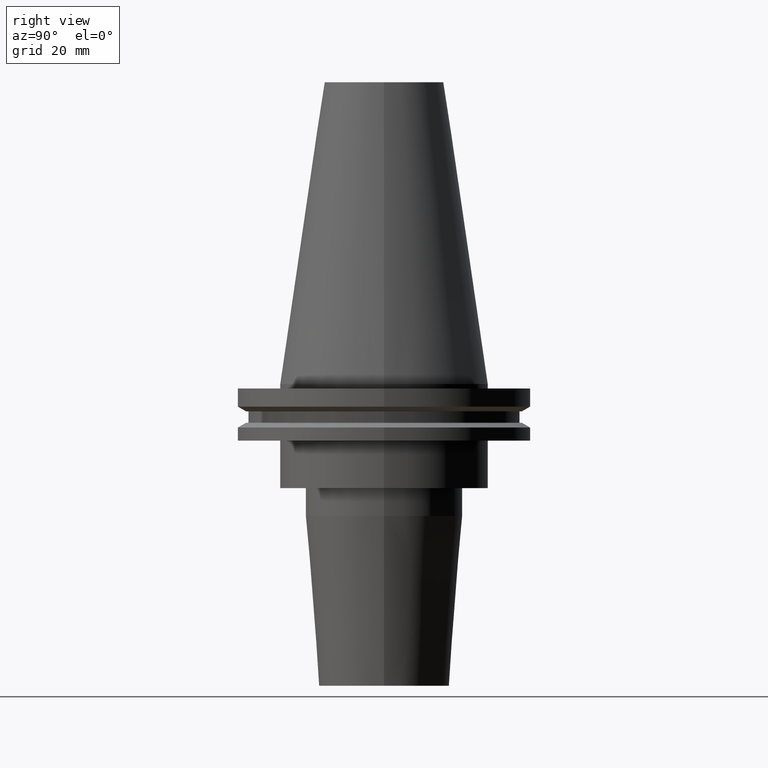
[diagram: clean part render]
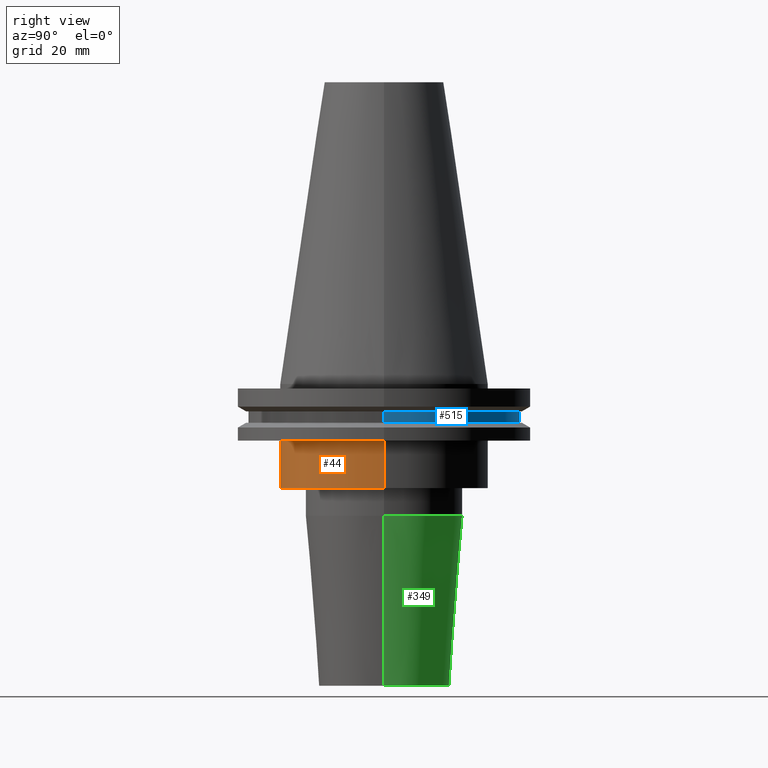
[diagram: same view with three faces highlighted in distinct colors, each labeled with its STEP entity id]
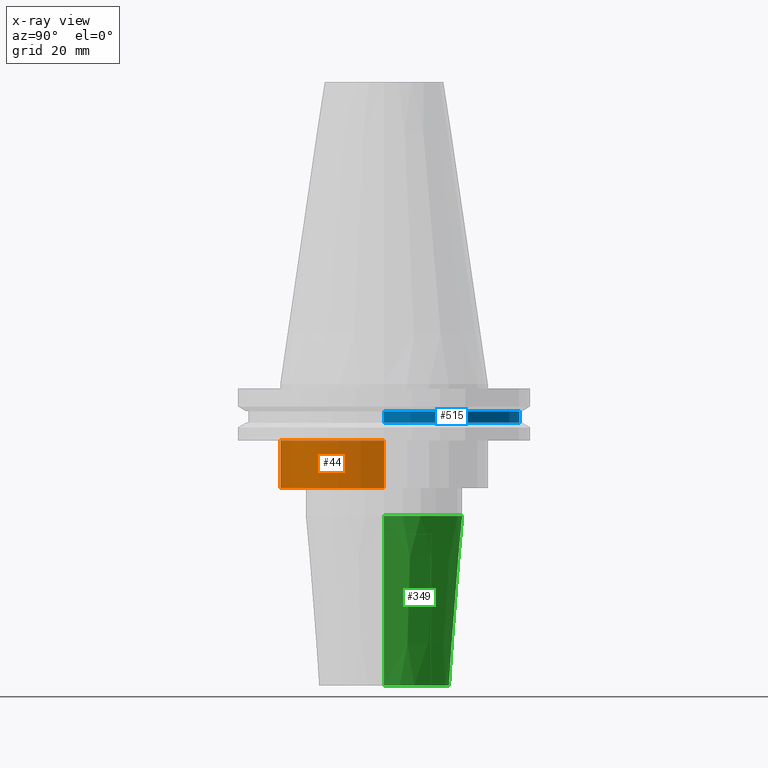
[diagram: x-ray of the same camera — body ghosted, the three highlighted faces saturated]
A machine part, right view with three faces highlighted in distinct colors.
The next image is the same camera in x-ray (body ghosted, the three faces saturated) — at least one of them is partly hidden behind the body in this view.
Their STEP definitions:

[orange] entity #44 — the highlighted cylindrical surface (partial cylindrical patch) has radius 34.925 mm, axis along (-0, -0, 1).
#4 = DIRECTION ( 'NONE',  ( 1.000000000000000000, 0.000000000000000000, 0.000000000000000000 ) ) ;
#38 = DIRECTION ( 'NONE',  ( 1.000000000000000000, 0.000000000000000000, 0.000000000000000000 ) ) ;
#44 = ADVANCED_FACE ( 'NONE', ( #411 ), #339, .T. ) ;
#60 = ORIENTED_EDGE ( 'NONE', *, *, #301, .T. ) ;
#63 = AXIS2_PLACEMENT_3D ( 'NONE', #656, #429, #38 ) ;
#93 = CARTESIAN_POINT ( 'NONE',  ( 0.000000000000000000, 0.000000000000000000, -35.04999999999999716 ) ) ;
#95 = CARTESIAN_POINT ( 'NONE',  ( -34.92499999999999716, 4.277078946022130887E-15, -35.04999999999999716 ) ) ;
#100 = EDGE_LOOP ( 'NONE', ( #353, #826, #60, #723 ) ) ;
#118 = CARTESIAN_POINT ( 'NONE',  ( 34.92499999999999716, 0.000000000000000000, 101.5999999999999943 ) ) ;
#125 = CIRCLE ( 'NONE', #247, 34.92499999999999716 ) ;
#140 = CARTESIAN_POINT ( 'NONE',  ( 0.000000000000000000, 0.000000000000000000, 101.5999999999999943 ) ) ;
#168 = VERTEX_POINT ( 'NONE', #95 ) ;
#185 = DIRECTION ( 'NONE',  ( -0.000000000000000000, -0.000000000000000000, 1.000000000000000000 ) ) ;
#202 = DIRECTION ( 'NONE',  ( -0.000000000000000000, -0.000000000000000000, 1.000000000000000000 ) ) ;
#247 = AXIS2_PLACEMENT_3D ( 'NONE', #93, #763, #4 ) ;
#288 = CARTESIAN_POINT ( 'NONE',  ( -34.92499999999999716, 4.277078946022130887E-15, -19.04999999999999716 ) ) ;
#301 = EDGE_CURVE ( 'NONE', #465, #319, #516, .T. ) ;
#319 = VERTEX_POINT ( 'NONE', #352 ) ;
#337 = EDGE_CURVE ( 'NONE', #168, #357, #501, .T. ) ;
#339 = CYLINDRICAL_SURFACE ( 'NONE', #709, 34.92499999999999716 ) ;
#352 = CARTESIAN_POINT ( 'NONE',  ( 34.92499999999999716, 0.000000000000000000, -19.04999999999999716 ) ) ;
#353 = ORIENTED_EDGE ( 'NONE', *, *, #337, .F. ) ;
#357 = VERTEX_POINT ( 'NONE', #288 ) ;
#372 = EDGE_CURVE ( 'NONE', #168, #465, #125, .T. ) ;
#411 = FACE_OUTER_BOUND ( 'NONE', #100, .T. ) ;
#429 = DIRECTION ( 'NONE',  ( -0.000000000000000000, -0.000000000000000000, 1.000000000000000000 ) ) ;
#465 = VERTEX_POINT ( 'NONE', #785 ) ;
#501 = LINE ( 'NONE', #630, #511 ) ;
#511 = VECTOR ( 'NONE', #705, 1000.000000000000000 ) ;
#516 = LINE ( 'NONE', #118, #552 ) ;
#552 = VECTOR ( 'NONE', #185, 1000.000000000000000 ) ;
#630 = CARTESIAN_POINT ( 'NONE',  ( -34.92499999999999716, 4.277078946022130887E-15, 101.5999999999999943 ) ) ;
#656 = CARTESIAN_POINT ( 'NONE',  ( 0.000000000000000000, 0.000000000000000000, -19.04999999999999716 ) ) ;
#682 = DIRECTION ( 'NONE',  ( 1.000000000000000000, 0.000000000000000000, 0.000000000000000000 ) ) ;
#705 = DIRECTION ( 'NONE',  ( -0.000000000000000000, -0.000000000000000000, 1.000000000000000000 ) ) ;
#709 = AXIS2_PLACEMENT_3D ( 'NONE', #140, #202, #682 ) ;
#723 = ORIENTED_EDGE ( 'NONE', *, *, #766, .F. ) ;
#758 = CIRCLE ( 'NONE', #63, 34.92499999999999716 ) ;
#763 = DIRECTION ( 'NONE',  ( -0.000000000000000000, -0.000000000000000000, 1.000000000000000000 ) ) ;
#766 = EDGE_CURVE ( 'NONE', #357, #319, #758, .T. ) ;
#785 = CARTESIAN_POINT ( 'NONE',  ( 34.92499999999999716, 0.000000000000000000, -35.04999999999999716 ) ) ;
#826 = ORIENTED_EDGE ( 'NONE', *, *, #372, .T. ) ;

[blue] entity #515 — the highlighted cylindrical surface (partial cylindrical patch) has radius 45.645 mm, axis along (-0, -0, 1).
#1 = DIRECTION ( 'NONE',  ( 1.000000000000000000, 0.000000000000000000, 0.000000000000000000 ) ) ;
#8 = LINE ( 'NONE', #275, #787 ) ;
#34 = LINE ( 'NONE', #643, #540 ) ;
#57 = EDGE_CURVE ( 'NONE', #560, #393, #311, .T. ) ;
#108 = ORIENTED_EDGE ( 'NONE', *, *, #57, .F. ) ;
#111 = ORIENTED_EDGE ( 'NONE', *, *, #351, .T. ) ;
#116 = CARTESIAN_POINT ( 'NONE',  ( -45.64500000000000313, 5.589900314708094957E-15, -9.204999999999991189 ) ) ;
#155 = DIRECTION ( 'NONE',  ( -0.000000000000000000, -0.000000000000000000, 1.000000000000000000 ) ) ;
#184 = CARTESIAN_POINT ( 'NONE',  ( 0.000000000000000000, 0.000000000000000000, 101.5999999999999943 ) ) ;
#275 = CARTESIAN_POINT ( 'NONE',  ( -45.64500000000000313, 5.589900314708094957E-15, 101.5999999999999943 ) ) ;
#285 = CARTESIAN_POINT ( 'NONE',  ( 45.64500000000000313, 0.000000000000000000, -9.204999999999991189 ) ) ;
#286 = EDGE_CURVE ( 'NONE', #734, #560, #34, .T. ) ;
#311 = CIRCLE ( 'NONE', #638, 45.64500000000000313 ) ;
#351 = EDGE_CURVE ( 'NONE', #734, #845, #838, .T. ) ;
#387 = DIRECTION ( 'NONE',  ( 1.000000000000000000, 0.000000000000000000, 0.000000000000000000 ) ) ;
#393 = VERTEX_POINT ( 'NONE', #116 ) ;
#440 = AXIS2_PLACEMENT_3D ( 'NONE', #184, #454, #387 ) ;
#454 = DIRECTION ( 'NONE',  ( -0.000000000000000000, -0.000000000000000000, 1.000000000000000000 ) ) ;
#472 = CARTESIAN_POINT ( 'NONE',  ( 0.000000000000000000, 0.000000000000000000, -9.204999999999991189 ) ) ;
#495 = AXIS2_PLACEMENT_3D ( 'NONE', #698, #573, #830 ) ;
#509 = CARTESIAN_POINT ( 'NONE',  ( 45.64500000000000313, 0.000000000000000000, -13.05499999999999794 ) ) ;
#515 = ADVANCED_FACE ( 'NONE', ( #594 ), #518, .T. ) ;
#518 = CYLINDRICAL_SURFACE ( 'NONE', #440, 45.64500000000000313 ) ;
#540 = VECTOR ( 'NONE', #792, 1000.000000000000000 ) ;
#560 = VERTEX_POINT ( 'NONE', #285 ) ;
#564 = ORIENTED_EDGE ( 'NONE', *, *, #286, .F. ) ;
#568 = CARTESIAN_POINT ( 'NONE',  ( -45.64500000000000313, 5.589900314708094957E-15, -13.05499999999999794 ) ) ;
#573 = DIRECTION ( 'NONE',  ( -0.000000000000000000, -0.000000000000000000, 1.000000000000000000 ) ) ;
#577 = EDGE_CURVE ( 'NONE', #845, #393, #8, .T. ) ;
#594 = FACE_OUTER_BOUND ( 'NONE', #797, .T. ) ;
#638 = AXIS2_PLACEMENT_3D ( 'NONE', #472, #744, #1 ) ;
#643 = CARTESIAN_POINT ( 'NONE',  ( 45.64500000000000313, 0.000000000000000000, 101.5999999999999943 ) ) ;
#698 = CARTESIAN_POINT ( 'NONE',  ( 0.000000000000000000, 0.000000000000000000, -13.05499999999999794 ) ) ;
#734 = VERTEX_POINT ( 'NONE', #509 ) ;
#744 = DIRECTION ( 'NONE',  ( -0.000000000000000000, -0.000000000000000000, 1.000000000000000000 ) ) ;
#787 = VECTOR ( 'NONE', #155, 1000.000000000000000 ) ;
#792 = DIRECTION ( 'NONE',  ( -0.000000000000000000, -0.000000000000000000, 1.000000000000000000 ) ) ;
#797 = EDGE_LOOP ( 'NONE', ( #111, #850, #108, #564 ) ) ;
#830 = DIRECTION ( 'NONE',  ( 1.000000000000000000, 0.000000000000000000, 0.000000000000000000 ) ) ;
#838 = CIRCLE ( 'NONE', #495, 45.64500000000000313 ) ;
#845 = VERTEX_POINT ( 'NONE', #568 ) ;
#850 = ORIENTED_EDGE ( 'NONE', *, *, #577, .T. ) ;

[green] entity #349 — the highlighted conical surface has half-angle 4.5 deg.
#6 = EDGE_CURVE ( 'NONE', #400, #793, #80, .T. ) ;
#17 = CONICAL_SURFACE ( 'NONE', #470, 22.00000000000000000, 0.07853981633973751431 ) ;
#80 = LINE ( 'NONE', #798, #735 ) ;
#101 = DIRECTION ( 'NONE',  ( 1.000000000000000000, 0.000000000000000000, 0.000000000000000000 ) ) ;
#105 = CARTESIAN_POINT ( 'NONE',  ( 0.000000000000000000, 0.000000000000000000, -101.5999999999999943 ) ) ;
#132 = VERTEX_POINT ( 'NONE', #748 ) ;
#148 = CARTESIAN_POINT ( 'NONE',  ( 0.000000000000000000, 0.000000000000000000, -44.42207868720844743 ) ) ;
#150 = DIRECTION ( 'NONE',  ( -0.000000000000000000, -0.000000000000000000, 1.000000000000000000 ) ) ;
#228 = CIRCLE ( 'NONE', #722, 22.00000000000000000 ) ;
#276 = ORIENTED_EDGE ( 'NONE', *, *, #6, .T. ) ;
#279 = DIRECTION ( 'NONE',  ( -0.07845909572783764385, 9.608468044709212160E-18, 0.9969173337331286300 ) ) ;
#281 = CIRCLE ( 'NONE', #687, 26.50000000000000000 ) ;
#304 = DIRECTION ( 'NONE',  ( -0.000000000000000000, -0.000000000000000000, 1.000000000000000000 ) ) ;
#325 = VERTEX_POINT ( 'NONE', #811 ) ;
#349 = ADVANCED_FACE ( 'NONE', ( #767 ), #17, .T. ) ;
#350 = LINE ( 'NONE', #749, #636 ) ;
#370 = ORIENTED_EDGE ( 'NONE', *, *, #691, .F. ) ;
#377 = DIRECTION ( 'NONE',  ( -0.000000000000000000, -0.000000000000000000, 1.000000000000000000 ) ) ;
#381 = CARTESIAN_POINT ( 'NONE',  ( 0.000000000000000000, 0.000000000000000000, -101.5999999999999943 ) ) ;
#400 = VERTEX_POINT ( 'NONE', #720 ) ;
#414 = DIRECTION ( 'NONE',  ( 0.07845909572783764385, 0.000000000000000000, 0.9969173337331286300 ) ) ;
#470 = AXIS2_PLACEMENT_3D ( 'NONE', #105, #304, #624 ) ;
#475 = EDGE_LOOP ( 'NONE', ( #547, #276, #537, #370 ) ) ;
#537 = ORIENTED_EDGE ( 'NONE', *, *, #628, .F. ) ;
#547 = ORIENTED_EDGE ( 'NONE', *, *, #824, .T. ) ;
#624 = DIRECTION ( 'NONE',  ( 1.000000000000000000, 0.000000000000000000, 0.000000000000000000 ) ) ;
#628 = EDGE_CURVE ( 'NONE', #132, #793, #281, .T. ) ;
#636 = VECTOR ( 'NONE', #414, 999.9999999999998863 ) ;
#685 = DIRECTION ( 'NONE',  ( 1.000000000000000000, 0.000000000000000000, 0.000000000000000000 ) ) ;
#687 = AXIS2_PLACEMENT_3D ( 'NONE', #148, #150, #685 ) ;
#691 = EDGE_CURVE ( 'NONE', #325, #132, #350, .T. ) ;
#720 = CARTESIAN_POINT ( 'NONE',  ( -22.00000000000000000, 2.969768487932331287E-15, -101.5999999999999943 ) ) ;
#722 = AXIS2_PLACEMENT_3D ( 'NONE', #381, #377, #101 ) ;
#735 = VECTOR ( 'NONE', #279, 999.9999999999998863 ) ;
#748 = CARTESIAN_POINT ( 'NONE',  ( 26.50000000000000000, 0.000000000000000000, -44.42207868720844743 ) ) ;
#749 = CARTESIAN_POINT ( 'NONE',  ( 22.00000000000000000, 0.000000000000000000, -101.5999999999999943 ) ) ;
#767 = FACE_OUTER_BOUND ( 'NONE', #475, .T. ) ;
#770 = CARTESIAN_POINT ( 'NONE',  ( -26.50000000000000000, 3.245314017740485765E-15, -44.42207868720844743 ) ) ;
#793 = VERTEX_POINT ( 'NONE', #770 ) ;
#798 = CARTESIAN_POINT ( 'NONE',  ( -22.00000000000000000, 2.694222958124176809E-15, -101.5999999999999943 ) ) ;
#811 = CARTESIAN_POINT ( 'NONE',  ( 22.00000000000000000, 0.000000000000000000, -101.5999999999999943 ) ) ;
#824 = EDGE_CURVE ( 'NONE', #325, #400, #228, .T. ) ;